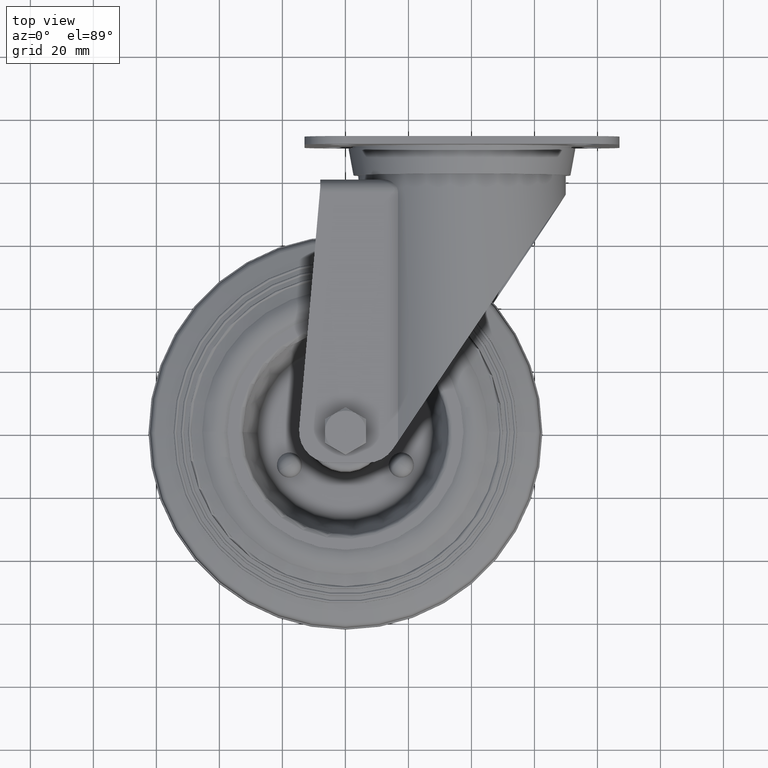
[diagram: clean part render]
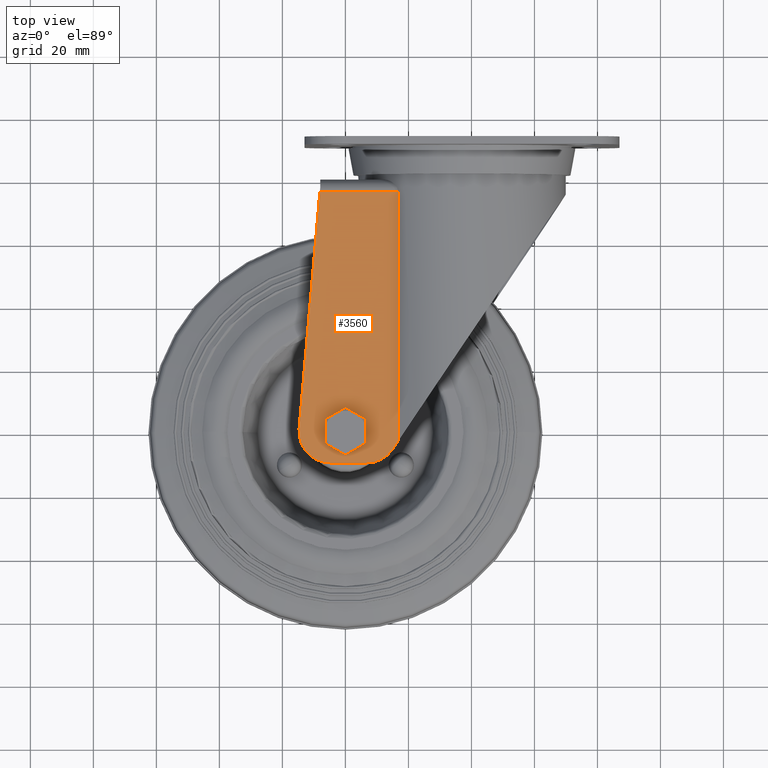
[diagram: same view with one face highlighted and labeled with its STEP entity id]
A machine part, top view. The second image highlights one B-rep face of the part: STEP entity #3560.
In plain terms, the highlighted planar face has unit normal (0, 0, 1).
Its self-contained STEP definition (entity closure, byte-faithful):
#239=FACE_BOUND('',#819,.T.);
#380=CIRCLE('',#4070,10.);
#381=CIRCLE('',#4071,10.);
#382=CIRCLE('',#4072,4.);
#579=FACE_OUTER_BOUND('',#818,.T.);
#818=EDGE_LOOP('',(#2639,#2640,#2641,#2642,#2643,#2644,#2645));
#819=EDGE_LOOP('',(#2646));
#1060=LINE('',#5914,#1283);
#1061=LINE('',#5916,#1284);
#1062=LINE('',#5918,#1285);
#1063=LINE('',#5920,#1286);
#1064=LINE('',#5924,#1287);
#1283=VECTOR('',#4842,1000.);
#1284=VECTOR('',#4843,1000.);
#1285=VECTOR('',#4844,1000.);
#1286=VECTOR('',#4845,1000.);
#1287=VECTOR('',#4848,1000.);
#1553=VERTEX_POINT('',#5912);
#1554=VERTEX_POINT('',#5913);
#1555=VERTEX_POINT('',#5915);
#1556=VERTEX_POINT('',#5917);
#1557=VERTEX_POINT('',#5919);
#1558=VERTEX_POINT('',#5921);
#1559=VERTEX_POINT('',#5923);
#1560=VERTEX_POINT('',#5926);
#1941=EDGE_CURVE('',#1553,#1554,#1060,.T.);
#1942=EDGE_CURVE('',#1555,#1553,#1061,.F.);
#1943=EDGE_CURVE('',#1556,#1555,#1062,.T.);
#1944=EDGE_CURVE('',#1557,#1556,#1063,.T.);
#1945=EDGE_CURVE('',#1558,#1557,#380,.F.);
#1946=EDGE_CURVE('',#1558,#1559,#1064,.T.);
#1947=EDGE_CURVE('',#1554,#1559,#381,.F.);
#1948=EDGE_CURVE('',#1560,#1560,#382,.F.);
#2639=ORIENTED_EDGE('',*,*,#1941,.F.);
#2640=ORIENTED_EDGE('',*,*,#1942,.F.);
#2641=ORIENTED_EDGE('',*,*,#1943,.F.);
#2642=ORIENTED_EDGE('',*,*,#1944,.F.);
#2643=ORIENTED_EDGE('',*,*,#1945,.F.);
#2644=ORIENTED_EDGE('',*,*,#1946,.T.);
#2645=ORIENTED_EDGE('',*,*,#1947,.F.);
#2646=ORIENTED_EDGE('',*,*,#1948,.T.);
#3234=PLANE('',#4069);
#3560=ADVANCED_FACE('',(#579,#239),#3234,.T.);
#4069=AXIS2_PLACEMENT_3D('',#5911,#4840,#4841);
#4070=AXIS2_PLACEMENT_3D('',#5922,#4846,#4847);
#4071=AXIS2_PLACEMENT_3D('',#5925,#4849,#4850);
#4072=AXIS2_PLACEMENT_3D('',#5927,#4851,#4852);
#4840=DIRECTION('center_axis',(0.,0.,1.));
#4841=DIRECTION('ref_axis',(1.,0.,0.));
#4842=DIRECTION('',(-0.559659144082599,-0.828722898467716,0.));
#4843=DIRECTION('',(0.,1.,0.));
#4844=DIRECTION('',(1.,0.,0.));
#4845=DIRECTION('',(0.0873795186723179,0.996175094908819,0.));
#4846=DIRECTION('center_axis',(0.,0.,1.));
#4847=DIRECTION('ref_axis',(1.,0.,0.));
#4848=DIRECTION('',(1.,0.,0.));
#4849=DIRECTION('center_axis',(0.,0.,1.));
#4850=DIRECTION('ref_axis',(1.,0.,0.));
#4851=DIRECTION('center_axis',(0.,0.,1.));
#4852=DIRECTION('ref_axis',(1.,0.,0.));
#5911=CARTESIAN_POINT('Origin',(-26.,76.,26.));
#5912=CARTESIAN_POINT('',(16.6775985670984,-3.19825669612718,26.));
#5913=CARTESIAN_POINT('',(15.0579377939621,-5.59659144083729,26.));
#5914=CARTESIAN_POINT('',(40.0425286556962,31.3996816923512,26.));
#5915=CARTESIAN_POINT('',(16.6775985670984,76.,26.));
#5916=CARTESIAN_POINT('',(16.6775985670984,93.4999999999998,26.));
#5917=CARTESIAN_POINT('',(-8.11424154448864,76.,26.));
#5918=CARTESIAN_POINT('',(-26.,76.,26.));
#5919=CARTESIAN_POINT('',(-14.7039381247509,0.873795186712101,26.));
#5920=CARTESIAN_POINT('',(-8.25080253480192,74.4431287840308,26.));
#5921=CARTESIAN_POINT('',(-4.74218717566271,-10.0000000000111,26.));
#5922=CARTESIAN_POINT('Origin',(-4.74218717566271,-1.11043986505965E-11,
26.));
#5923=CARTESIAN_POINT('',(6.77070880928472,-10.0000000000113,26.));
#5924=CARTESIAN_POINT('',(-26.,-9.99999999999999,26.));
#5925=CARTESIAN_POINT('Origin',(6.77070880928488,-1.12861109347051E-11,
26.));
#5926=CARTESIAN_POINT('',(4.,0.,26.));
#5927=CARTESIAN_POINT('Origin',(0.,0.,26.));